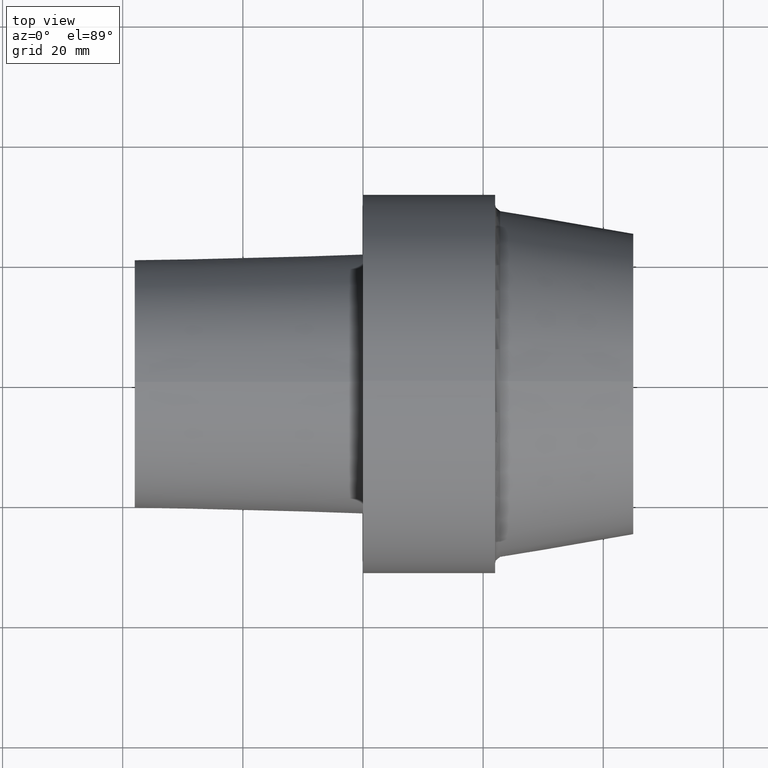
[diagram: clean part render]
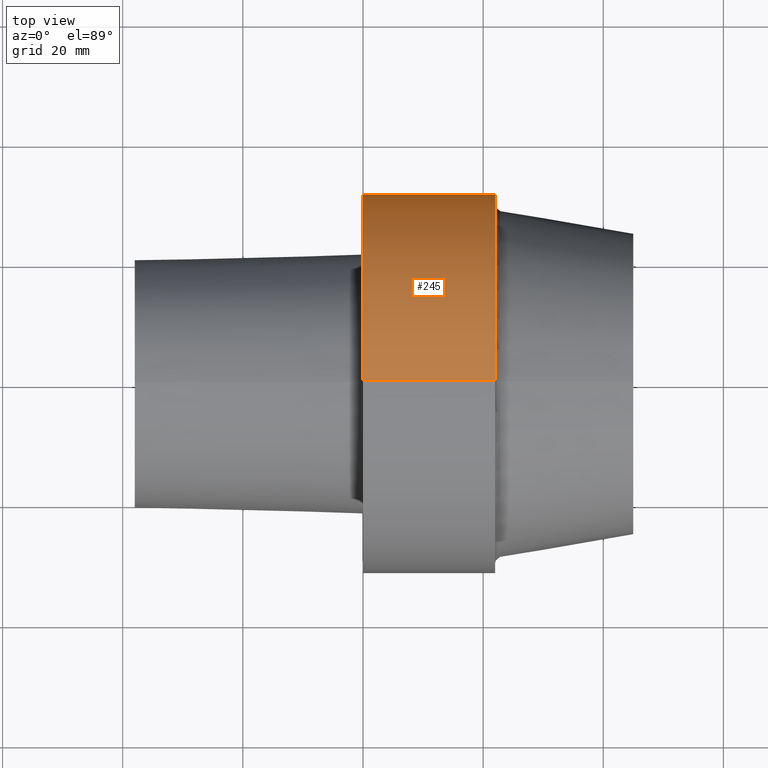
[diagram: same view with one face highlighted and labeled with its STEP entity id]
A machine part, top view. The second image highlights one B-rep face of the part: STEP entity #245.
In plain terms, the highlighted cylindrical surface (partial cylindrical patch) has radius 31.5 mm, axis along (1, 0, 0).
Its self-contained STEP definition (entity closure, byte-faithful):
#5 = AXIS2_PLACEMENT_3D ( 'NONE', #215, #372, #193 ) ;
#23 = LINE ( 'NONE', #141, #312 ) ;
#25 = EDGE_CURVE ( 'NONE', #239, #387, #23, .T. ) ;
#27 = CIRCLE ( 'NONE', #66, 31.49999996787000001 ) ;
#41 = CARTESIAN_POINT ( 'NONE',  ( 0.000000000000000000, 0.000000000000000000, 0.000000000000000000 ) ) ;
#62 = DIRECTION ( 'NONE',  ( 1.000000000000000000, 0.000000000000000000, 0.000000000000000000 ) ) ;
#63 = LINE ( 'NONE', #188, #153 ) ;
#65 = DIRECTION ( 'NONE',  ( 0.000000000000000000, 0.000000000000000000, -1.000000000000000000 ) ) ;
#66 = AXIS2_PLACEMENT_3D ( 'NONE', #41, #249, #65 ) ;
#67 = CARTESIAN_POINT ( 'NONE',  ( 21.99999997755999814, 0.000000000000000000, -31.49999996787000001 ) ) ;
#83 = VERTEX_POINT ( 'NONE', #236 ) ;
#92 = DIRECTION ( 'NONE',  ( 1.000000000000000000, 0.000000000000000000, 0.000000000000000000 ) ) ;
#97 = ORIENTED_EDGE ( 'NONE', *, *, #207, .T. ) ;
#103 = CARTESIAN_POINT ( 'NONE',  ( 0.000000000000000000, 3.857637413379370248E-15, 31.49999996787000001 ) ) ;
#106 = EDGE_CURVE ( 'NONE', #83, #136, #63, .T. ) ;
#109 = DIRECTION ( 'NONE',  ( 1.000000000000000000, 0.000000000000000000, 0.000000000000000000 ) ) ;
#123 = CYLINDRICAL_SURFACE ( 'NONE', #354, 31.49999996787000001 ) ;
#136 = VERTEX_POINT ( 'NONE', #67 ) ;
#138 = ORIENTED_EDGE ( 'NONE', *, *, #151, .F. ) ;
#141 = CARTESIAN_POINT ( 'NONE',  ( 44.99999995409999798, 3.857637413379370248E-15, 31.49999996787000001 ) ) ;
#151 = EDGE_CURVE ( 'NONE', #136, #387, #297, .T. ) ;
#153 = VECTOR ( 'NONE', #92, 1000.000000000000000 ) ;
#166 = FACE_OUTER_BOUND ( 'NONE', #191, .T. ) ;
#188 = CARTESIAN_POINT ( 'NONE',  ( 44.99999995409999798, 0.000000000000000000, -31.49999996787000001 ) ) ;
#191 = EDGE_LOOP ( 'NONE', ( #97, #224, #138, #197 ) ) ;
#193 = DIRECTION ( 'NONE',  ( 0.000000000000000000, 0.000000000000000000, -1.000000000000000000 ) ) ;
#197 = ORIENTED_EDGE ( 'NONE', *, *, #106, .F. ) ;
#207 = EDGE_CURVE ( 'NONE', #83, #239, #27, .T. ) ;
#215 = CARTESIAN_POINT ( 'NONE',  ( 21.99999997755999814, 0.000000000000000000, 0.000000000000000000 ) ) ;
#224 = ORIENTED_EDGE ( 'NONE', *, *, #25, .T. ) ;
#236 = CARTESIAN_POINT ( 'NONE',  ( 0.000000000000000000, 0.000000000000000000, -31.49999996787000001 ) ) ;
#239 = VERTEX_POINT ( 'NONE', #103 ) ;
#245 = ADVANCED_FACE ( 'NONE', ( #166 ), #123, .T. ) ;
#249 = DIRECTION ( 'NONE',  ( 1.000000000000000000, 0.000000000000000000, 0.000000000000000000 ) ) ;
#287 = DIRECTION ( 'NONE',  ( 0.000000000000000000, 0.000000000000000000, -1.000000000000000000 ) ) ;
#297 = CIRCLE ( 'NONE', #5, 31.49999996787000001 ) ;
#312 = VECTOR ( 'NONE', #109, 1000.000000000000000 ) ;
#316 = CARTESIAN_POINT ( 'NONE',  ( 21.99999997755999814, 3.857637413379370248E-15, 31.49999996787000001 ) ) ;
#333 = CARTESIAN_POINT ( 'NONE',  ( 44.99999995409999798, 0.000000000000000000, 0.000000000000000000 ) ) ;
#354 = AXIS2_PLACEMENT_3D ( 'NONE', #333, #62, #287 ) ;
#372 = DIRECTION ( 'NONE',  ( 1.000000000000000000, 0.000000000000000000, 0.000000000000000000 ) ) ;
#387 = VERTEX_POINT ( 'NONE', #316 ) ;